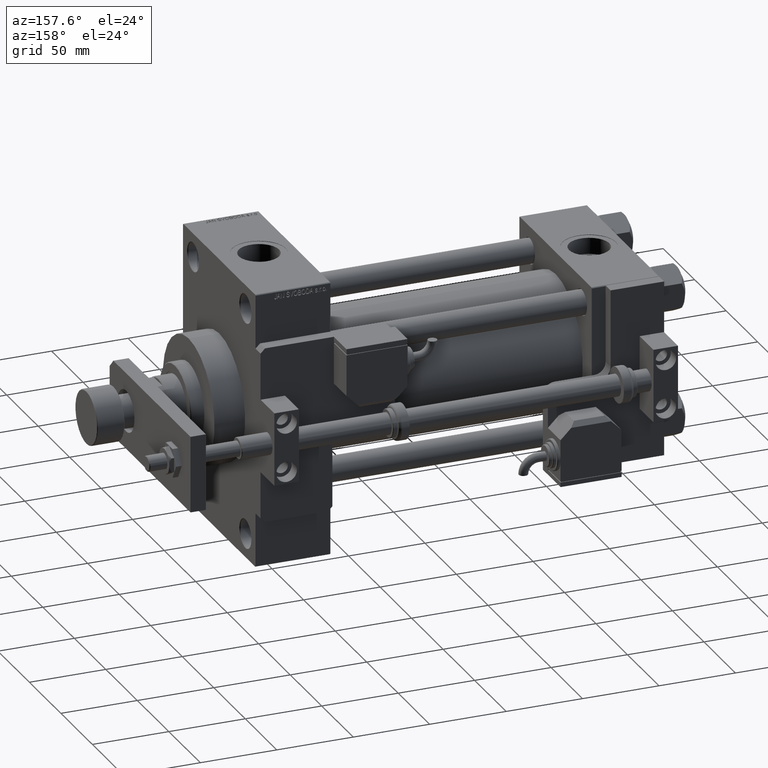
[diagram: clean part render]
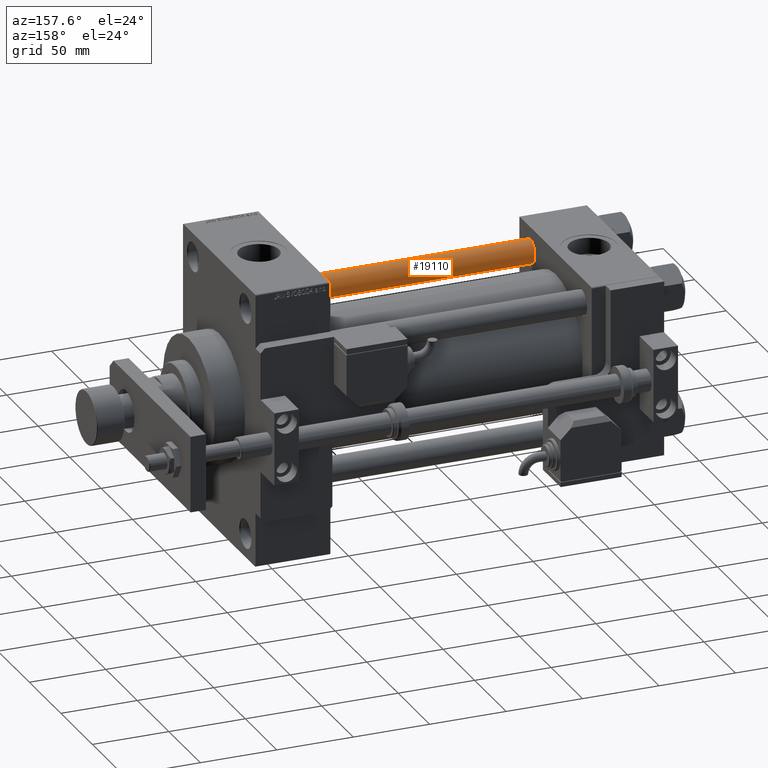
[diagram: same view with one face highlighted and labeled with its STEP entity id]
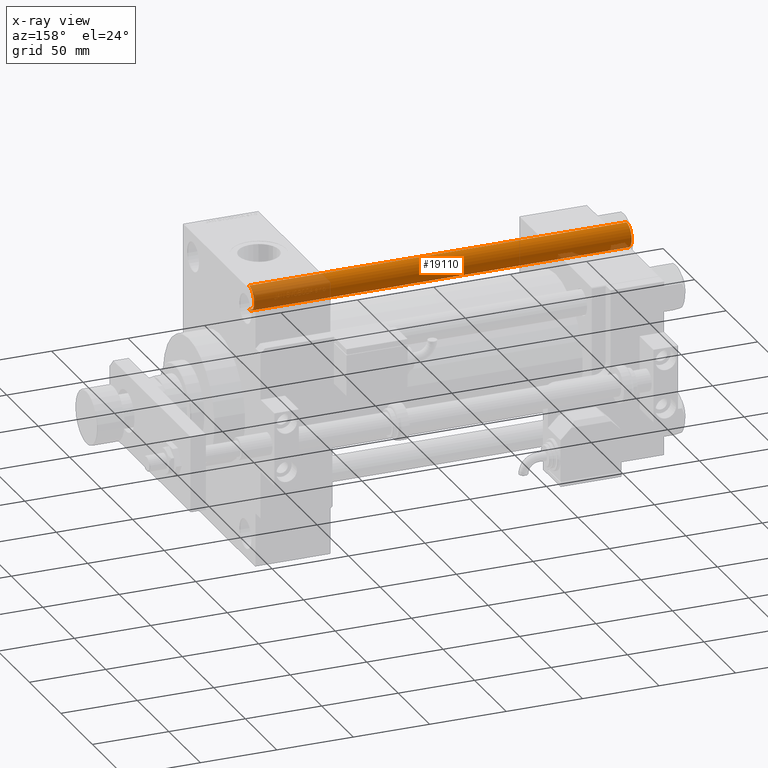
[diagram: x-ray of the same camera — body ghosted, the highlighted face saturated]
A machine part, auxiliary view. The second image highlights one B-rep face of the part: STEP entity #19110.
The next image is the same camera in x-ray: the body ghosted, the highlighted face saturated — about 22% of this face is hidden behind the body in this view.
In plain terms, the highlighted cylindrical surface (edge-blend (fillet) strip) has radius 8 mm, axis along (-1, 0, -0).
Its self-contained STEP definition (entity closure, byte-faithful):
#913 = EDGE_CURVE ( 'NONE', #53309, #32787, #50117, .T. ) ;
#2009 = EDGE_LOOP ( 'NONE', ( #38694, #23482, #17906, #45516 ) ) ;
#2026 = LINE ( 'NONE', #34972, #32657 ) ;
#2886 = CARTESIAN_POINT ( 'NONE',  ( 0.000000000000000000, 0.000000000000000000, 0.4999999999999726885 ) ) ;
#3382 = FACE_OUTER_BOUND ( 'NONE', #2009, .T. ) ;
#11273 = CARTESIAN_POINT ( 'NONE',  ( 8.000000000000000000, 9.797174393178825657E-16, 247.5000000000000284 ) ) ;
#12152 = CIRCLE ( 'NONE', #37333, 8.000000000000000000 ) ;
#12617 = DIRECTION ( 'NONE',  ( -0.000000000000000000, -0.000000000000000000, -1.000000000000000000 ) ) ;
#13192 = DIRECTION ( 'NONE',  ( -1.000000000000000000, 0.000000000000000000, 0.000000000000000000 ) ) ;
#15339 = AXIS2_PLACEMENT_3D ( 'NONE', #2886, #22764, #51911 ) ;
#15921 = CYLINDRICAL_SURFACE ( 'NONE', #40173, 8.000000000000000000 ) ;
#17214 = LINE ( 'NONE', #37082, #37790 ) ;
#17906 = ORIENTED_EDGE ( 'NONE', *, *, #53416, .T. ) ;
#18813 = CARTESIAN_POINT ( 'NONE',  ( 8.000000000000000000, 9.797174393178825657E-16, 0.4999999999999726885 ) ) ;
#19110 = ADVANCED_FACE ( 'NONE', ( #3382 ), #15921, .T. ) ;
#22764 = DIRECTION ( 'NONE',  ( -0.000000000000000000, -0.000000000000000000, 1.000000000000000000 ) ) ;
#23482 = ORIENTED_EDGE ( 'NONE', *, *, #39024, .T. ) ;
#23710 = DIRECTION ( 'NONE',  ( 0.000000000000000000, 0.000000000000000000, -1.000000000000000000 ) ) ;
#26997 = DIRECTION ( 'NONE',  ( 1.000000000000000000, 0.000000000000000000, 0.000000000000000000 ) ) ;
#27071 = DIRECTION ( 'NONE',  ( -0.000000000000000000, -0.000000000000000000, -1.000000000000000000 ) ) ;
#27277 = EDGE_CURVE ( 'NONE', #49955, #32787, #2026, .T. ) ;
#27802 = CARTESIAN_POINT ( 'NONE',  ( 0.000000000000000000, 0.000000000000000000, 247.5000000000000284 ) ) ;
#28426 = DIRECTION ( 'NONE',  ( -0.000000000000000000, -0.000000000000000000, -1.000000000000000000 ) ) ;
#32657 = VECTOR ( 'NONE', #27071, 1000.000000000000000 ) ;
#32787 = VERTEX_POINT ( 'NONE', #18813 ) ;
#34972 = CARTESIAN_POINT ( 'NONE',  ( 8.000000000000000000, 9.797174393178825657E-16, 248.0000000000000000 ) ) ;
#36012 = CARTESIAN_POINT ( 'NONE',  ( -8.000000000000000000, 0.000000000000000000, 0.4999999999999726885 ) ) ;
#37082 = CARTESIAN_POINT ( 'NONE',  ( -8.000000000000000000, 0.000000000000000000, 248.0000000000000000 ) ) ;
#37333 = AXIS2_PLACEMENT_3D ( 'NONE', #27802, #23710, #26997 ) ;
#37790 = VECTOR ( 'NONE', #12617, 1000.000000000000000 ) ;
#38694 = ORIENTED_EDGE ( 'NONE', *, *, #27277, .F. ) ;
#39024 = EDGE_CURVE ( 'NONE', #49955, #43188, #12152, .T. ) ;
#39048 = CARTESIAN_POINT ( 'NONE',  ( -8.000000000000000000, 0.000000000000000000, 247.5000000000000284 ) ) ;
#40173 = AXIS2_PLACEMENT_3D ( 'NONE', #49116, #28426, #13192 ) ;
#43188 = VERTEX_POINT ( 'NONE', #39048 ) ;
#45516 = ORIENTED_EDGE ( 'NONE', *, *, #913, .T. ) ;
#49116 = CARTESIAN_POINT ( 'NONE',  ( 0.000000000000000000, 0.000000000000000000, 248.0000000000000000 ) ) ;
#49955 = VERTEX_POINT ( 'NONE', #11273 ) ;
#50117 = CIRCLE ( 'NONE', #15339, 8.000000000000000000 ) ;
#51911 = DIRECTION ( 'NONE',  ( 1.000000000000000000, 0.000000000000000000, 0.000000000000000000 ) ) ;
#53309 = VERTEX_POINT ( 'NONE', #36012 ) ;
#53416 = EDGE_CURVE ( 'NONE', #43188, #53309, #17214, .T. ) ;